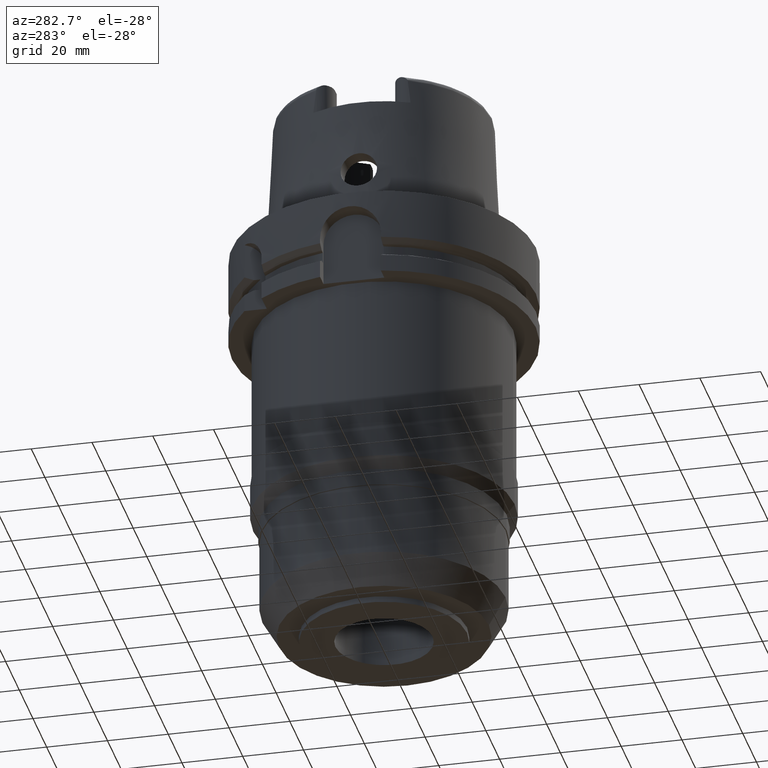
[diagram: clean part render]
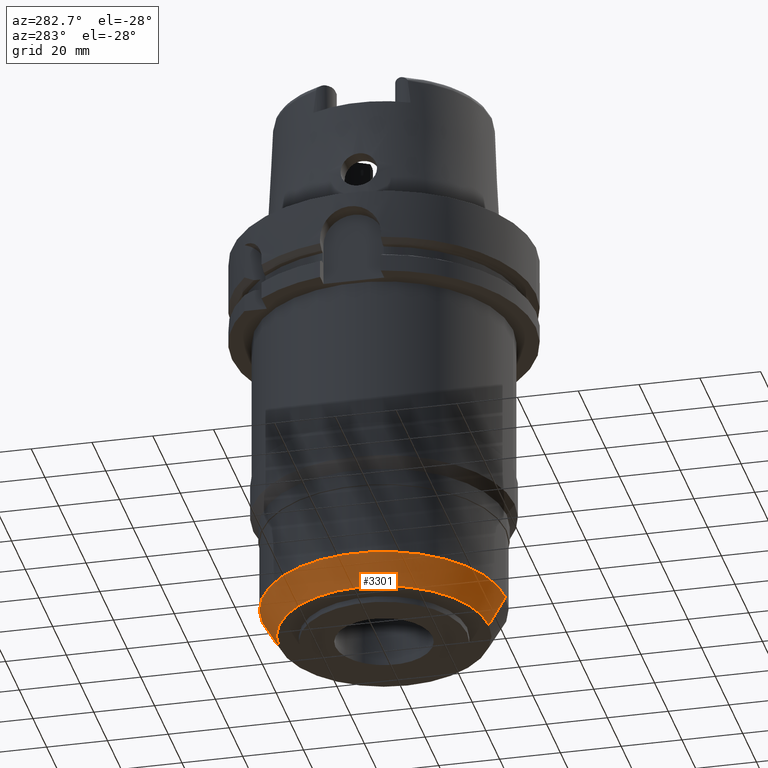
[diagram: same view with one face highlighted and labeled with its STEP entity id]
A machine part, auxiliary view. The second image highlights one B-rep face of the part: STEP entity #3301.
In plain terms, the highlighted conical surface has half-angle 30 deg.
Its self-contained STEP definition (entity closure, byte-faithful):
#960=CARTESIAN_POINT('',(0.E0,0.E0,-1.354E2));
#961=DIRECTION('',(0.E0,0.E0,1.E0));
#962=DIRECTION('',(0.E0,1.E0,0.E0));
#963=AXIS2_PLACEMENT_3D('',#960,#961,#962);
#984=DIRECTION('',(0.E0,-5.E-1,-8.660254037845E-1));
#985=VECTOR('',#984,1.096965511460E1);
#986=CARTESIAN_POINT('',(0.E0,4.E1,-1.259E2));
#987=LINE('',#986,#985);
#999=CARTESIAN_POINT('',(0.E0,0.E0,-1.259E2));
#1000=DIRECTION('',(0.E0,0.E0,1.E0));
#1001=DIRECTION('',(0.E0,1.E0,0.E0));
#1002=AXIS2_PLACEMENT_3D('',#999,#1000,#1001);
#1007=DIRECTION('',(0.E0,5.E-1,-8.660254037845E-1));
#1008=VECTOR('',#1007,1.096965511460E1);
#1009=CARTESIAN_POINT('',(0.E0,-4.E1,-1.259E2));
#1010=LINE('',#1009,#1008);
#2415=CARTESIAN_POINT('',(0.E0,-3.451517244270E1,-1.354E2));
#2416=CARTESIAN_POINT('',(0.E0,3.451517244270E1,-1.354E2));
#2417=VERTEX_POINT('',#2415);
#2418=VERTEX_POINT('',#2416);
#2419=CARTESIAN_POINT('',(0.E0,4.E1,-1.259E2));
#2420=VERTEX_POINT('',#2419);
#2421=CARTESIAN_POINT('',(0.E0,-4.E1,-1.259E2));
#2422=VERTEX_POINT('',#2421);
#3289=CARTESIAN_POINT('',(0.E0,0.E0,-1.3065E2));
#3290=DIRECTION('',(0.E0,0.E0,1.E0));
#3291=DIRECTION('',(0.E0,1.E0,0.E0));
#3292=AXIS2_PLACEMENT_3D('',#3289,#3290,#3291);
#3293=CONICAL_SURFACE('',#3292,3.725758622135E1,3.E1);
#3294=ORIENTED_EDGE('',*,*,#3279,.F.);
#3296=ORIENTED_EDGE('',*,*,#3295,.T.);
#3297=ORIENTED_EDGE('',*,*,#3282,.T.);
#3298=ORIENTED_EDGE('',*,*,#3265,.F.);
#3299=EDGE_LOOP('',(#3294,#3296,#3297,#3298));
#3300=FACE_OUTER_BOUND('',#3299,.F.);
#964=CIRCLE('',#963,3.451517244270E1);
#1003=CIRCLE('',#1002,4.E1);
#3265=EDGE_CURVE('',#2418,#2417,#964,.T.);
#3279=EDGE_CURVE('',#2420,#2418,#987,.T.);
#3282=EDGE_CURVE('',#2422,#2417,#1010,.T.);
#3295=EDGE_CURVE('',#2420,#2422,#1003,.T.);
#3301=ADVANCED_FACE('',(#3300),#3293,.T.);